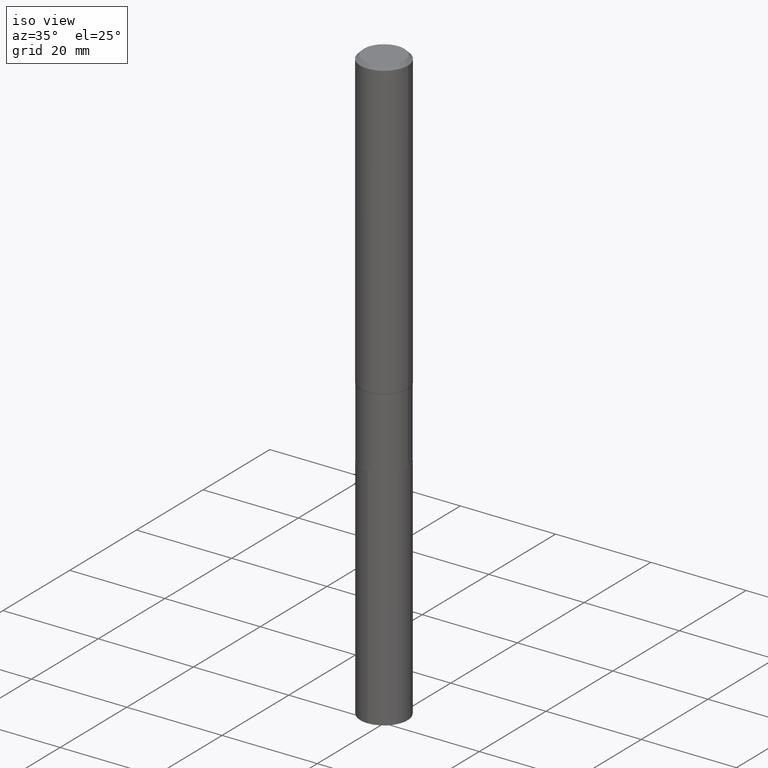
[diagram: clean part render]
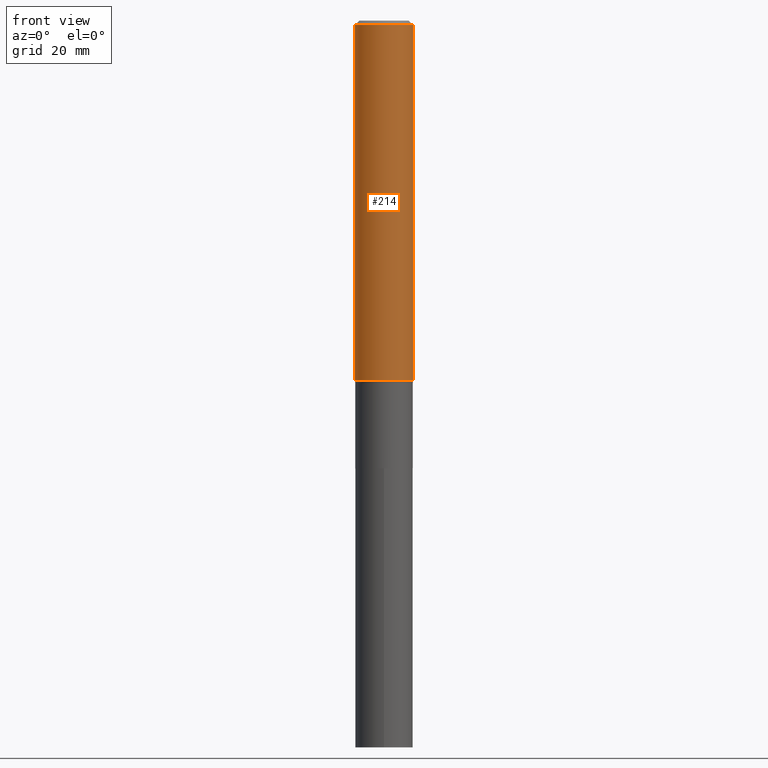
[diagram: tour spotlight — one face highlighted and labeled with its STEP entity id]
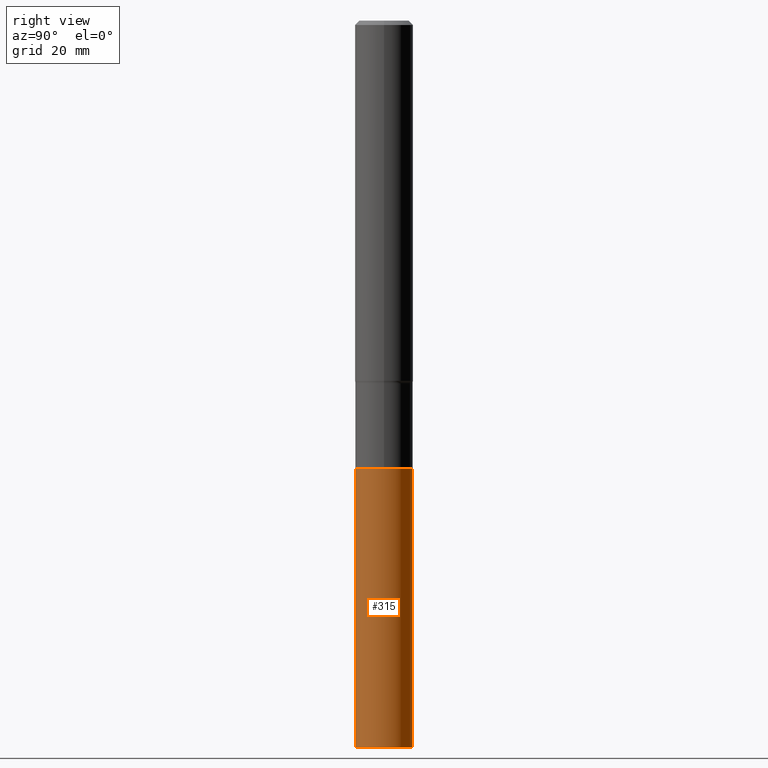
[diagram: tour spotlight — one face highlighted and labeled with its STEP entity id]
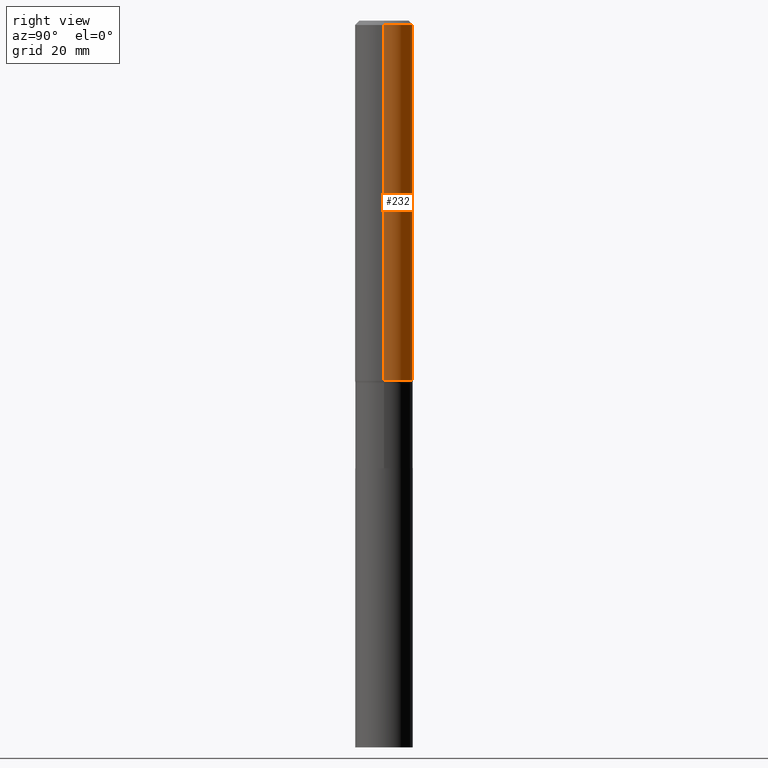
[diagram: tour spotlight — one face highlighted and labeled with its STEP entity id]
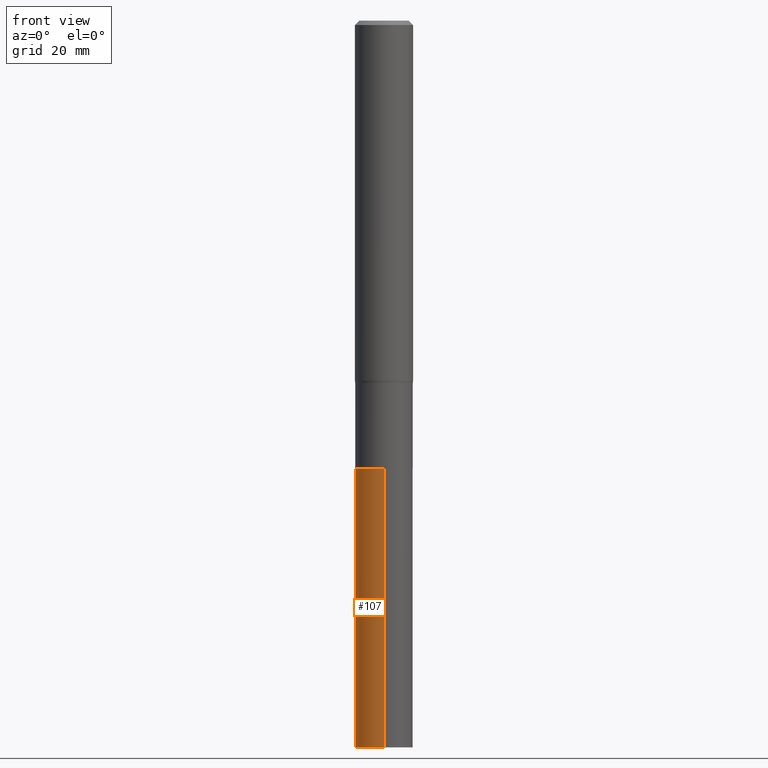
[diagram: tour spotlight — one face highlighted and labeled with its STEP entity id]
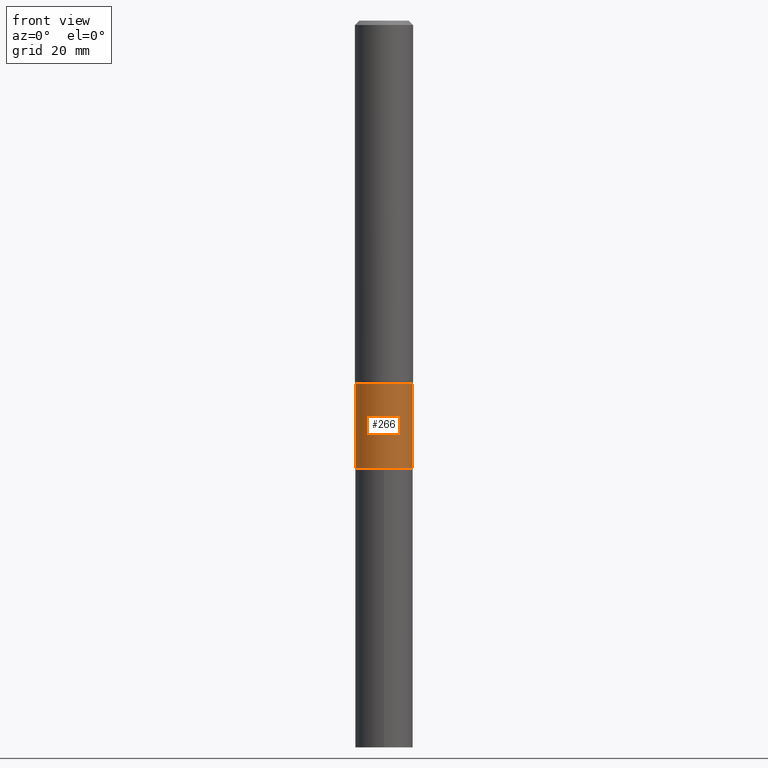
[diagram: tour spotlight — one face highlighted and labeled with its STEP entity id]
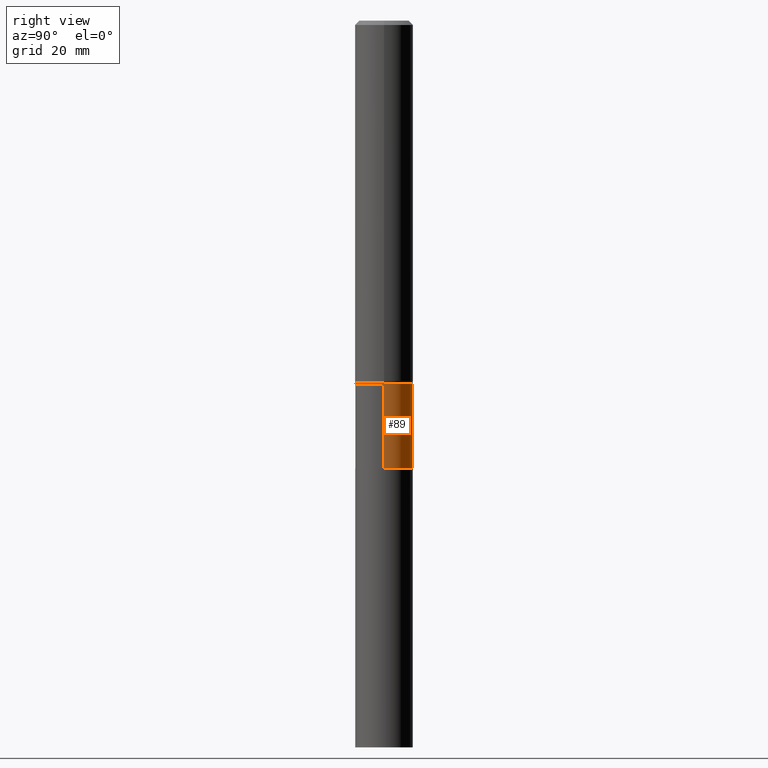
[diagram: tour spotlight — one face highlighted and labeled with its STEP entity id]
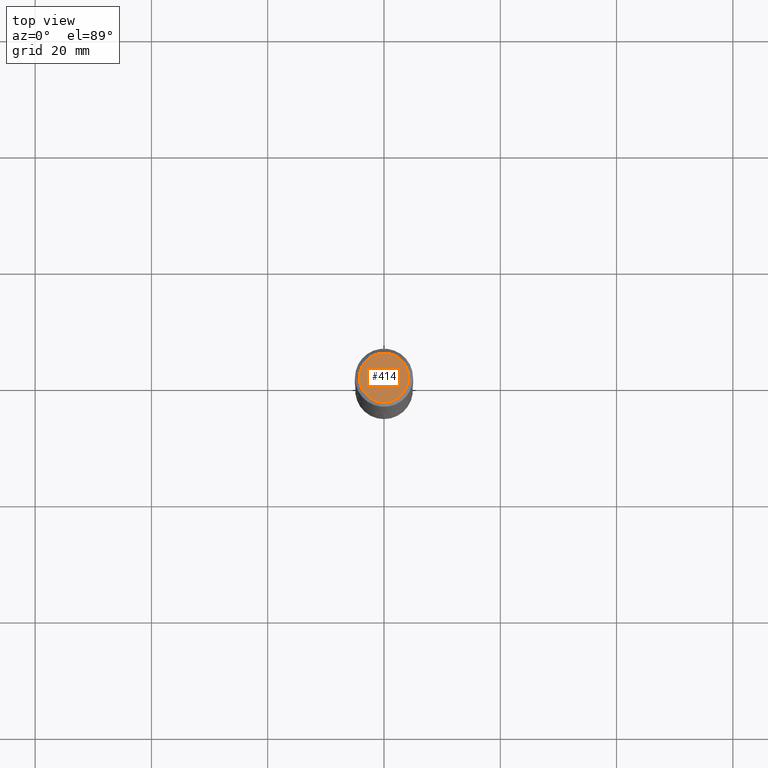
[diagram: tour spotlight — one face highlighted and labeled with its STEP entity id]
A machine part: a face-by-face anatomy tour. The part has 16 B-rep faces; the first image is the clean iso view, then the 7 largest visible faces are spotlighted one at a time (largest first), each with its STEP entity span.

Face 1 — front view, entity #214. In plain terms, the highlighted cylindrical surface (edge-blend (fillet) strip) has radius 5 mm, axis along (-0, 0, 1).
Definition (entity closure, byte-faithful):
#32 = EDGE_CURVE ( 'NONE', #34, #115, #176, .T. ) ;
#34 = VERTEX_POINT ( 'NONE', #38 ) ;
#37 = VECTOR ( 'NONE', #394, 39.37007874015748143 ) ;
#38 = CARTESIAN_POINT ( 'NONE',  ( 0.1968500000000003303, -9.891172664826294866E-15, -2.439244445323486055 ) ) ;
#40 = CARTESIAN_POINT ( 'NONE',  ( -0.1968500000000001915, 1.398703375343758577E-15, -9.682923725166790684E-30 ) ) ;
#44 = DIRECTION ( 'NONE',  ( -2.445468806185136597E-29, 3.491481338843145583E-15, 1.000000000000000000 ) ) ;
#51 = CARTESIAN_POINT ( 'NONE',  ( -0.1968500000000003303, -7.117873086379991526E-15, -2.439244445323486055 ) ) ;
#58 = AXIS2_PLACEMENT_3D ( 'NONE', #327, #119, #293 ) ;
#69 = VECTOR ( 'NONE', #439, 39.37007874015748143 ) ;
#74 = EDGE_CURVE ( 'NONE', #351, #34, #285, .T. ) ;
#88 = DIRECTION ( 'NONE',  ( 1.000000000000000000, -6.982962677686266711E-15, 4.876176775795935793E-29 ) ) ;
#115 = VERTEX_POINT ( 'NONE', #396 ) ;
#119 = DIRECTION ( 'NONE',  ( -2.445468806185136597E-29, 3.491481338843145583E-15, 1.000000000000000000 ) ) ;
#161 = CYLINDRICAL_SURFACE ( 'NONE', #189, 0.1968500000000001915 ) ;
#176 = LINE ( 'NONE', #249, #37 ) ;
#189 = AXIS2_PLACEMENT_3D ( 'NONE', #258, #295, #88 ) ;
#194 = EDGE_CURVE ( 'NONE', #351, #236, #318, .T. ) ;
#197 = DIRECTION ( 'NONE',  ( 1.000000000000000000, -6.982962677686265922E-15, 0.000000000000000000 ) ) ;
#210 = EDGE_LOOP ( 'NONE', ( #230, #415, #443, #323 ) ) ;
#214 = ADVANCED_FACE ( 'NONE', ( #331 ), #161, .T. ) ;
#230 = ORIENTED_EDGE ( 'NONE', *, *, #194, .F. ) ;
#236 = VERTEX_POINT ( 'NONE', #413 ) ;
#249 = CARTESIAN_POINT ( 'NONE',  ( 0.1968500000000001915, -1.374596203102542989E-15, 9.598753983154309266E-30 ) ) ;
#258 = CARTESIAN_POINT ( 'NONE',  ( 0.000000000000000000, 0.000000000000000000, 0.000000000000000000 ) ) ;
#259 = EDGE_CURVE ( 'NONE', #236, #115, #395, .T. ) ;
#285 = CIRCLE ( 'NONE', #58, 0.1968500000000003580 ) ;
#293 = DIRECTION ( 'NONE',  ( 1.000000000000000000, -6.982962677686265922E-15, 0.000000000000000000 ) ) ;
#295 = DIRECTION ( 'NONE',  ( -2.445468806185136597E-29, 3.491481338843145583E-15, 1.000000000000000000 ) ) ;
#318 = LINE ( 'NONE', #40, #69 ) ;
#323 = ORIENTED_EDGE ( 'NONE', *, *, #259, .F. ) ;
#327 = CARTESIAN_POINT ( 'NONE',  ( 5.965096201698950370E-29, -8.516576461723751680E-15, -2.439244445323486055 ) ) ;
#331 = FACE_OUTER_BOUND ( 'NONE', #210, .T. ) ;
#351 = VERTEX_POINT ( 'NONE', #51 ) ;
#366 = CARTESIAN_POINT ( 'NONE',  ( 7.220858017463210361E-31, -1.030947152326916856E-16, -0.02952750000000019942 ) ) ;
#380 = AXIS2_PLACEMENT_3D ( 'NONE', #366, #44, #197 ) ;
#394 = DIRECTION ( 'NONE',  ( -2.445468806185136877E-29, 3.491481338843145188E-15, 1.000000000000000000 ) ) ;
#395 = CIRCLE ( 'NONE', #380, 0.1968500000000000250 ) ;
#396 = CARTESIAN_POINT ( 'NONE',  ( 0.1968500000000000250, -1.477690918335233294E-15, -0.02952750000000019942 ) ) ;
#413 = CARTESIAN_POINT ( 'NONE',  ( -0.1968500000000000250, -2.911132213134461529E-15, -0.02952750000000019942 ) ) ;
#415 = ORIENTED_EDGE ( 'NONE', *, *, #74, .T. ) ;
#439 = DIRECTION ( 'NONE',  ( -2.445468806185136877E-29, 3.491481338843145188E-15, 1.000000000000000000 ) ) ;
#443 = ORIENTED_EDGE ( 'NONE', *, *, #32, .T. ) ;

Face 2 — right view, entity #315. In plain terms, the highlighted cylindrical surface (edge-blend (fillet) strip) has radius 4.9505 mm, axis along (-0, 0, 1).
Definition (entity closure, byte-faithful):
#3 = AXIS2_PLACEMENT_3D ( 'NONE', #427, #332, #94 ) ;
#4 = AXIS2_PLACEMENT_3D ( 'NONE', #388, #106, #422 ) ;
#19 = VECTOR ( 'NONE', #185, 39.37007874015748143 ) ;
#46 = EDGE_CURVE ( 'NONE', #416, #270, #362, .T. ) ;
#68 = EDGE_CURVE ( 'NONE', #211, #416, #255, .T. ) ;
#82 = EDGE_CURVE ( 'NONE', #421, #270, #434, .T. ) ;
#94 = DIRECTION ( 'NONE',  ( -6.982962677686266711E-15, -1.000000000000000000, 2.803332984776052637E-15 ) ) ;
#97 = VECTOR ( 'NONE', #257, 39.37007874015748143 ) ;
#106 = DIRECTION ( 'NONE',  ( -2.445466211599433691E-29, 3.491485054437546873E-15, 1.000000000000000000 ) ) ;
#120 = AXIS2_PLACEMENT_3D ( 'NONE', #124, #256, #401 ) ;
#124 = CARTESIAN_POINT ( 'NONE',  ( 7.412949592189004141E-29, -1.058372738243522642E-14, -3.031299999999999883 ) ) ;
#132 = CARTESIAN_POINT ( 'NONE',  ( -1.360979425880932790E-15, -0.1949000000000171706, -4.921299999999999564 ) ) ;
#141 = ORIENTED_EDGE ( 'NONE', *, *, #68, .F. ) ;
#160 = CARTESIAN_POINT ( 'NONE',  ( 1.384847791996555886E-15, 0.1948999999999894428, -3.031300000000000328 ) ) ;
#185 = DIRECTION ( 'NONE',  ( -2.445466211599433971E-29, 3.491485054437547267E-15, 1.000000000000000000 ) ) ;
#191 = FACE_OUTER_BOUND ( 'NONE', #201, .T. ) ;
#201 = EDGE_LOOP ( 'NONE', ( #453, #372, #458, #141 ) ) ;
#211 = VERTEX_POINT ( 'NONE', #132 ) ;
#255 = LINE ( 'NONE', #330, #19 ) ;
#256 = DIRECTION ( 'NONE',  ( -2.445466211599433691E-29, 3.491485054437546873E-15, 1.000000000000000000 ) ) ;
#257 = DIRECTION ( 'NONE',  ( -2.445466211599433971E-29, 3.491485054437547267E-15, 1.000000000000000000 ) ) ;
#270 = VERTEX_POINT ( 'NONE', #160 ) ;
#291 = CARTESIAN_POINT ( 'NONE',  ( 1.384847791996509146E-15, 0.1948999999999893873, -3.031300000000000328 ) ) ;
#315 = ADVANCED_FACE ( 'NONE', ( #191 ), #361, .T. ) ;
#316 = CARTESIAN_POINT ( 'NONE',  ( 1.384847791996532221E-15, 0.1948999999999828092, -4.921300000000002228 ) ) ;
#330 = CARTESIAN_POINT ( 'NONE',  ( -1.360979425880978939E-15, -0.1949000000000105648, -3.031299999999999439 ) ) ;
#332 = DIRECTION ( 'NONE',  ( -2.445466211599433691E-29, 3.491485054437546873E-15, 1.000000000000000000 ) ) ;
#361 = CYLINDRICAL_SURFACE ( 'NONE', #120, 0.1948999999999999899 ) ;
#362 = CIRCLE ( 'NONE', #3, 0.1948999999999999899 ) ;
#372 = ORIENTED_EDGE ( 'NONE', *, *, #82, .T. ) ;
#377 = CARTESIAN_POINT ( 'NONE',  ( -1.360979425880978939E-15, -0.1949000000000105648, -3.031299999999999439 ) ) ;
#388 = CARTESIAN_POINT ( 'NONE',  ( 1.203488073211193522E-28, -1.718263413532219501E-14, -4.921300000000000452 ) ) ;
#401 = DIRECTION ( 'NONE',  ( -6.982962677686266711E-15, -1.000000000000000000, 2.803332984776052637E-15 ) ) ;
#416 = VERTEX_POINT ( 'NONE', #377 ) ;
#421 = VERTEX_POINT ( 'NONE', #316 ) ;
#422 = DIRECTION ( 'NONE',  ( -6.982962677686266711E-15, -1.000000000000000000, 5.606665969552105274E-15 ) ) ;
#427 = CARTESIAN_POINT ( 'NONE',  ( 7.412949592189004141E-29, -1.058372738243522642E-14, -3.031299999999999883 ) ) ;
#434 = LINE ( 'NONE', #291, #97 ) ;
#440 = EDGE_CURVE ( 'NONE', #211, #421, #447, .T. ) ;
#447 = CIRCLE ( 'NONE', #4, 0.1948999999999999899 ) ;
#453 = ORIENTED_EDGE ( 'NONE', *, *, #440, .T. ) ;
#458 = ORIENTED_EDGE ( 'NONE', *, *, #46, .F. ) ;

Face 3 — right view, entity #232. In plain terms, the highlighted cylindrical surface (edge-blend (fillet) strip) has radius 5 mm, axis along (-0, 0, 1).
Definition (entity closure, byte-faithful):
#1 = DIRECTION ( 'NONE',  ( -2.445468806185136597E-29, 3.491481338843145583E-15, 1.000000000000000000 ) ) ;
#15 = ORIENTED_EDGE ( 'NONE', *, *, #32, .F. ) ;
#21 = ORIENTED_EDGE ( 'NONE', *, *, #409, .F. ) ;
#22 = CARTESIAN_POINT ( 'NONE',  ( 0.000000000000000000, 0.000000000000000000, 0.000000000000000000 ) ) ;
#32 = EDGE_CURVE ( 'NONE', #34, #115, #176, .T. ) ;
#34 = VERTEX_POINT ( 'NONE', #38 ) ;
#37 = VECTOR ( 'NONE', #394, 39.37007874015748143 ) ;
#38 = CARTESIAN_POINT ( 'NONE',  ( 0.1968500000000003303, -9.891172664826294866E-15, -2.439244445323486055 ) ) ;
#39 = CARTESIAN_POINT ( 'NONE',  ( 5.965096201698950370E-29, -8.516576461723751680E-15, -2.439244445323486055 ) ) ;
#40 = CARTESIAN_POINT ( 'NONE',  ( -0.1968500000000001915, 1.398703375343758577E-15, -9.682923725166790684E-30 ) ) ;
#51 = CARTESIAN_POINT ( 'NONE',  ( -0.1968500000000003303, -7.117873086379991526E-15, -2.439244445323486055 ) ) ;
#56 = ORIENTED_EDGE ( 'NONE', *, *, #112, .T. ) ;
#69 = VECTOR ( 'NONE', #439, 39.37007874015748143 ) ;
#77 = AXIS2_PLACEMENT_3D ( 'NONE', #173, #175, #244 ) ;
#112 = EDGE_CURVE ( 'NONE', #34, #351, #245, .T. ) ;
#115 = VERTEX_POINT ( 'NONE', #396 ) ;
#131 = ORIENTED_EDGE ( 'NONE', *, *, #194, .T. ) ;
#140 = DIRECTION ( 'NONE',  ( 1.000000000000000000, -6.982962677686266711E-15, 4.876176775795935793E-29 ) ) ;
#173 = CARTESIAN_POINT ( 'NONE',  ( 7.220858017463210361E-31, -1.030947152326916856E-16, -0.02952750000000019942 ) ) ;
#175 = DIRECTION ( 'NONE',  ( -2.445468806185136597E-29, 3.491481338843145583E-15, 1.000000000000000000 ) ) ;
#176 = LINE ( 'NONE', #249, #37 ) ;
#194 = EDGE_CURVE ( 'NONE', #351, #236, #318, .T. ) ;
#205 = FACE_OUTER_BOUND ( 'NONE', #382, .T. ) ;
#208 = AXIS2_PLACEMENT_3D ( 'NONE', #39, #1, #428 ) ;
#209 = CIRCLE ( 'NONE', #77, 0.1968500000000000250 ) ;
#232 = ADVANCED_FACE ( 'NONE', ( #205 ), #346, .T. ) ;
#236 = VERTEX_POINT ( 'NONE', #413 ) ;
#244 = DIRECTION ( 'NONE',  ( 1.000000000000000000, -6.982962677686265922E-15, 0.000000000000000000 ) ) ;
#245 = CIRCLE ( 'NONE', #208, 0.1968500000000003580 ) ;
#249 = CARTESIAN_POINT ( 'NONE',  ( 0.1968500000000001915, -1.374596203102542989E-15, 9.598753983154309266E-30 ) ) ;
#318 = LINE ( 'NONE', #40, #69 ) ;
#346 = CYLINDRICAL_SURFACE ( 'NONE', #358, 0.1968500000000001915 ) ;
#351 = VERTEX_POINT ( 'NONE', #51 ) ;
#358 = AXIS2_PLACEMENT_3D ( 'NONE', #22, #450, #140 ) ;
#382 = EDGE_LOOP ( 'NONE', ( #56, #131, #21, #15 ) ) ;
#394 = DIRECTION ( 'NONE',  ( -2.445468806185136877E-29, 3.491481338843145188E-15, 1.000000000000000000 ) ) ;
#396 = CARTESIAN_POINT ( 'NONE',  ( 0.1968500000000000250, -1.477690918335233294E-15, -0.02952750000000019942 ) ) ;
#409 = EDGE_CURVE ( 'NONE', #115, #236, #209, .T. ) ;
#413 = CARTESIAN_POINT ( 'NONE',  ( -0.1968500000000000250, -2.911132213134461529E-15, -0.02952750000000019942 ) ) ;
#428 = DIRECTION ( 'NONE',  ( 1.000000000000000000, -6.982962677686265922E-15, 0.000000000000000000 ) ) ;
#439 = DIRECTION ( 'NONE',  ( -2.445468806185136877E-29, 3.491481338843145188E-15, 1.000000000000000000 ) ) ;
#450 = DIRECTION ( 'NONE',  ( -2.445468806185136597E-29, 3.491481338843145583E-15, 1.000000000000000000 ) ) ;

Face 4 — front view, entity #107. In plain terms, the highlighted cylindrical surface (edge-blend (fillet) strip) has radius 4.9505 mm, axis along (-0, 0, 1).
Definition (entity closure, byte-faithful):
#13 = EDGE_CURVE ( 'NONE', #270, #416, #368, .T. ) ;
#19 = VECTOR ( 'NONE', #185, 39.37007874015748143 ) ;
#29 = EDGE_LOOP ( 'NONE', ( #411, #135, #170, #184 ) ) ;
#68 = EDGE_CURVE ( 'NONE', #211, #416, #255, .T. ) ;
#82 = EDGE_CURVE ( 'NONE', #421, #270, #434, .T. ) ;
#97 = VECTOR ( 'NONE', #257, 39.37007874015748143 ) ;
#107 = ADVANCED_FACE ( 'NONE', ( #324 ), #223, .T. ) ;
#117 = DIRECTION ( 'NONE',  ( -6.982962677686266711E-15, -1.000000000000000000, 2.803332984776052637E-15 ) ) ;
#132 = CARTESIAN_POINT ( 'NONE',  ( -1.360979425880932790E-15, -0.1949000000000171706, -4.921299999999999564 ) ) ;
#135 = ORIENTED_EDGE ( 'NONE', *, *, #137, .T. ) ;
#137 = EDGE_CURVE ( 'NONE', #421, #211, #342, .T. ) ;
#160 = CARTESIAN_POINT ( 'NONE',  ( 1.384847791996555886E-15, 0.1948999999999894428, -3.031300000000000328 ) ) ;
#170 = ORIENTED_EDGE ( 'NONE', *, *, #68, .T. ) ;
#184 = ORIENTED_EDGE ( 'NONE', *, *, #13, .F. ) ;
#185 = DIRECTION ( 'NONE',  ( -2.445466211599433971E-29, 3.491485054437547267E-15, 1.000000000000000000 ) ) ;
#199 = DIRECTION ( 'NONE',  ( -2.445466211599433691E-29, 3.491485054437546873E-15, 1.000000000000000000 ) ) ;
#211 = VERTEX_POINT ( 'NONE', #132 ) ;
#216 = AXIS2_PLACEMENT_3D ( 'NONE', #284, #424, #117 ) ;
#223 = CYLINDRICAL_SURFACE ( 'NONE', #467, 0.1948999999999999899 ) ;
#255 = LINE ( 'NONE', #330, #19 ) ;
#257 = DIRECTION ( 'NONE',  ( -2.445466211599433971E-29, 3.491485054437547267E-15, 1.000000000000000000 ) ) ;
#270 = VERTEX_POINT ( 'NONE', #160 ) ;
#284 = CARTESIAN_POINT ( 'NONE',  ( 7.412949592189004141E-29, -1.058372738243522642E-14, -3.031299999999999883 ) ) ;
#291 = CARTESIAN_POINT ( 'NONE',  ( 1.384847791996509146E-15, 0.1948999999999893873, -3.031300000000000328 ) ) ;
#316 = CARTESIAN_POINT ( 'NONE',  ( 1.384847791996532221E-15, 0.1948999999999828092, -4.921300000000002228 ) ) ;
#320 = DIRECTION ( 'NONE',  ( -2.445466211599433691E-29, 3.491485054437546873E-15, 1.000000000000000000 ) ) ;
#324 = FACE_OUTER_BOUND ( 'NONE', #29, .T. ) ;
#330 = CARTESIAN_POINT ( 'NONE',  ( -1.360979425880978939E-15, -0.1949000000000105648, -3.031299999999999439 ) ) ;
#335 = CARTESIAN_POINT ( 'NONE',  ( 1.203488073211193522E-28, -1.718263413532219501E-14, -4.921300000000000452 ) ) ;
#342 = CIRCLE ( 'NONE', #429, 0.1948999999999999899 ) ;
#364 = CARTESIAN_POINT ( 'NONE',  ( 7.412949592189004141E-29, -1.058372738243522642E-14, -3.031299999999999883 ) ) ;
#368 = CIRCLE ( 'NONE', #216, 0.1948999999999999899 ) ;
#377 = CARTESIAN_POINT ( 'NONE',  ( -1.360979425880978939E-15, -0.1949000000000105648, -3.031299999999999439 ) ) ;
#400 = DIRECTION ( 'NONE',  ( -6.982962677686266711E-15, -1.000000000000000000, 5.606665969552105274E-15 ) ) ;
#411 = ORIENTED_EDGE ( 'NONE', *, *, #82, .F. ) ;
#416 = VERTEX_POINT ( 'NONE', #377 ) ;
#421 = VERTEX_POINT ( 'NONE', #316 ) ;
#424 = DIRECTION ( 'NONE',  ( -2.445466211599433691E-29, 3.491485054437546873E-15, 1.000000000000000000 ) ) ;
#429 = AXIS2_PLACEMENT_3D ( 'NONE', #335, #199, #400 ) ;
#434 = LINE ( 'NONE', #291, #97 ) ;
#467 = AXIS2_PLACEMENT_3D ( 'NONE', #364, #320, #468 ) ;
#468 = DIRECTION ( 'NONE',  ( -6.982962677686266711E-15, -1.000000000000000000, 2.803332984776052637E-15 ) ) ;

Face 5 — front view, entity #266. In plain terms, the highlighted cylindrical surface (edge-blend (fillet) strip) has radius 4.9505 mm, axis along (-0, 0, 1).
Definition (entity closure, byte-faithful):
#12 = DIRECTION ( 'NONE',  ( -2.445468806185136597E-29, 3.491481338843145583E-15, 1.000000000000000000 ) ) ;
#23 = CARTESIAN_POINT ( 'NONE',  ( 6.008027763035643175E-29, -8.577871353269839146E-15, -2.456799999999999873 ) ) ;
#24 = DIRECTION ( 'NONE',  ( -2.445468806185136597E-29, 3.491481338843145583E-15, 1.000000000000000000 ) ) ;
#26 = CARTESIAN_POINT ( 'NONE',  ( 0.1948999999999999344, -1.360979425881052894E-15, 9.503668536026277414E-30 ) ) ;
#28 = AXIS2_PLACEMENT_3D ( 'NONE', #66, #24, #314 ) ;
#53 = CARTESIAN_POINT ( 'NONE',  ( -0.1948999999999999344, 1.384847791996434796E-15, -9.587004490906808522E-30 ) ) ;
#55 = VERTEX_POINT ( 'NONE', #301 ) ;
#63 = LINE ( 'NONE', #53, #329 ) ;
#66 = CARTESIAN_POINT ( 'NONE',  ( 7.411726857785911339E-29, -1.058198164176580413E-14, -3.030799999999999716 ) ) ;
#79 = CYLINDRICAL_SURFACE ( 'NONE', #152, 0.1948999999999999344 ) ;
#92 = CARTESIAN_POINT ( 'NONE',  ( 0.000000000000000000, 0.000000000000000000, 0.000000000000000000 ) ) ;
#109 = LINE ( 'NONE', #26, #438 ) ;
#125 = CIRCLE ( 'NONE', #28, 0.1948999999999999899 ) ;
#130 = CARTESIAN_POINT ( 'NONE',  ( 0.1948999999999999067, -9.938850779150892237E-15, -2.456799999999999873 ) ) ;
#138 = EDGE_LOOP ( 'NONE', ( #357, #410, #386, #348 ) ) ;
#152 = AXIS2_PLACEMENT_3D ( 'NONE', #92, #12, #292 ) ;
#162 = DIRECTION ( 'NONE',  ( 1.000000000000000000, -6.982962677686267499E-15, 0.000000000000000000 ) ) ;
#181 = CARTESIAN_POINT ( 'NONE',  ( -0.1948999999999999899, -8.195078705521387433E-15, -3.030799999999999716 ) ) ;
#186 = EDGE_CURVE ( 'NONE', #192, #55, #125, .T. ) ;
#192 = VERTEX_POINT ( 'NONE', #181 ) ;
#240 = CIRCLE ( 'NONE', #369, 0.1948999999999999067 ) ;
#241 = VERTEX_POINT ( 'NONE', #349 ) ;
#266 = ADVANCED_FACE ( 'NONE', ( #436 ), #79, .T. ) ;
#274 = DIRECTION ( 'NONE',  ( -2.445468806185136877E-29, 3.491481338843145188E-15, 1.000000000000000000 ) ) ;
#292 = DIRECTION ( 'NONE',  ( 1.000000000000000000, -6.982962677686266711E-15, 4.876176775795936914E-29 ) ) ;
#301 = CARTESIAN_POINT ( 'NONE',  ( 0.1948999999999999899, -1.194296106764685722E-14, -3.030799999999999716 ) ) ;
#307 = VERTEX_POINT ( 'NONE', #130 ) ;
#314 = DIRECTION ( 'NONE',  ( 1.000000000000000000, -6.982962677686264344E-15, 0.000000000000000000 ) ) ;
#329 = VECTOR ( 'NONE', #274, 39.37007874015748143 ) ;
#348 = ORIENTED_EDGE ( 'NONE', *, *, #451, .F. ) ;
#349 = CARTESIAN_POINT ( 'NONE',  ( -0.1948999999999999067, -8.195078705521387433E-15, -2.456799999999999873 ) ) ;
#357 = ORIENTED_EDGE ( 'NONE', *, *, #465, .F. ) ;
#369 = AXIS2_PLACEMENT_3D ( 'NONE', #23, #426, #162 ) ;
#386 = ORIENTED_EDGE ( 'NONE', *, *, #398, .T. ) ;
#398 = EDGE_CURVE ( 'NONE', #55, #307, #109, .T. ) ;
#410 = ORIENTED_EDGE ( 'NONE', *, *, #186, .T. ) ;
#426 = DIRECTION ( 'NONE',  ( -2.445468806185136597E-29, 3.491481338843145583E-15, 1.000000000000000000 ) ) ;
#436 = FACE_OUTER_BOUND ( 'NONE', #138, .T. ) ;
#438 = VECTOR ( 'NONE', #466, 39.37007874015748143 ) ;
#451 = EDGE_CURVE ( 'NONE', #241, #307, #240, .T. ) ;
#465 = EDGE_CURVE ( 'NONE', #192, #241, #63, .T. ) ;
#466 = DIRECTION ( 'NONE',  ( -2.445468806185136877E-29, 3.491481338843145188E-15, 1.000000000000000000 ) ) ;

Face 6 — right view, entity #89. In plain terms, the highlighted cylindrical surface (edge-blend (fillet) strip) has radius 4.9505 mm, axis along (-0, 0, 1).
Definition (entity closure, byte-faithful):
#2 = EDGE_CURVE ( 'NONE', #307, #241, #297, .T. ) ;
#6 = DIRECTION ( 'NONE',  ( -2.445468806185136597E-29, 3.491481338843145583E-15, 1.000000000000000000 ) ) ;
#26 = CARTESIAN_POINT ( 'NONE',  ( 0.1948999999999999344, -1.360979425881052894E-15, 9.503668536026277414E-30 ) ) ;
#33 = CARTESIAN_POINT ( 'NONE',  ( 6.008027763035643175E-29, -8.577871353269839146E-15, -2.456799999999999873 ) ) ;
#41 = FACE_OUTER_BOUND ( 'NONE', #279, .T. ) ;
#53 = CARTESIAN_POINT ( 'NONE',  ( -0.1948999999999999344, 1.384847791996434796E-15, -9.587004490906808522E-30 ) ) ;
#55 = VERTEX_POINT ( 'NONE', #301 ) ;
#63 = LINE ( 'NONE', #53, #329 ) ;
#80 = DIRECTION ( 'NONE',  ( 1.000000000000000000, -6.982962677686266711E-15, 4.876176775795936914E-29 ) ) ;
#84 = CIRCLE ( 'NONE', #151, 0.1948999999999999899 ) ;
#87 = DIRECTION ( 'NONE',  ( 1.000000000000000000, -6.982962677686264344E-15, 0.000000000000000000 ) ) ;
#89 = ADVANCED_FACE ( 'NONE', ( #41 ), #187, .T. ) ;
#93 = EDGE_CURVE ( 'NONE', #55, #192, #84, .T. ) ;
#101 = ORIENTED_EDGE ( 'NONE', *, *, #2, .F. ) ;
#109 = LINE ( 'NONE', #26, #438 ) ;
#130 = CARTESIAN_POINT ( 'NONE',  ( 0.1948999999999999067, -9.938850779150892237E-15, -2.456799999999999873 ) ) ;
#145 = ORIENTED_EDGE ( 'NONE', *, *, #398, .F. ) ;
#151 = AXIS2_PLACEMENT_3D ( 'NONE', #250, #6, #87 ) ;
#155 = ORIENTED_EDGE ( 'NONE', *, *, #93, .T. ) ;
#181 = CARTESIAN_POINT ( 'NONE',  ( -0.1948999999999999899, -8.195078705521387433E-15, -3.030799999999999716 ) ) ;
#187 = CYLINDRICAL_SURFACE ( 'NONE', #454, 0.1948999999999999344 ) ;
#192 = VERTEX_POINT ( 'NONE', #181 ) ;
#213 = DIRECTION ( 'NONE',  ( -2.445468806185136597E-29, 3.491481338843145583E-15, 1.000000000000000000 ) ) ;
#239 = AXIS2_PLACEMENT_3D ( 'NONE', #33, #213, #289 ) ;
#241 = VERTEX_POINT ( 'NONE', #349 ) ;
#250 = CARTESIAN_POINT ( 'NONE',  ( 7.411726857785911339E-29, -1.058198164176580413E-14, -3.030799999999999716 ) ) ;
#274 = DIRECTION ( 'NONE',  ( -2.445468806185136877E-29, 3.491481338843145188E-15, 1.000000000000000000 ) ) ;
#279 = EDGE_LOOP ( 'NONE', ( #155, #417, #101, #145 ) ) ;
#289 = DIRECTION ( 'NONE',  ( 1.000000000000000000, -6.982962677686267499E-15, 0.000000000000000000 ) ) ;
#297 = CIRCLE ( 'NONE', #239, 0.1948999999999999067 ) ;
#301 = CARTESIAN_POINT ( 'NONE',  ( 0.1948999999999999899, -1.194296106764685722E-14, -3.030799999999999716 ) ) ;
#307 = VERTEX_POINT ( 'NONE', #130 ) ;
#329 = VECTOR ( 'NONE', #274, 39.37007874015748143 ) ;
#349 = CARTESIAN_POINT ( 'NONE',  ( -0.1948999999999999067, -8.195078705521387433E-15, -2.456799999999999873 ) ) ;
#398 = EDGE_CURVE ( 'NONE', #55, #307, #109, .T. ) ;
#402 = CARTESIAN_POINT ( 'NONE',  ( 0.000000000000000000, 0.000000000000000000, 0.000000000000000000 ) ) ;
#417 = ORIENTED_EDGE ( 'NONE', *, *, #465, .T. ) ;
#425 = DIRECTION ( 'NONE',  ( -2.445468806185136597E-29, 3.491481338843145583E-15, 1.000000000000000000 ) ) ;
#438 = VECTOR ( 'NONE', #466, 39.37007874015748143 ) ;
#454 = AXIS2_PLACEMENT_3D ( 'NONE', #402, #425, #80 ) ;
#465 = EDGE_CURVE ( 'NONE', #192, #241, #63, .T. ) ;
#466 = DIRECTION ( 'NONE',  ( -2.445468806185136877E-29, 3.491481338843145188E-15, 1.000000000000000000 ) ) ;

Face 7 — top view, entity #414. In plain terms, the highlighted planar face has unit normal (0, -0, -1).
Definition (entity closure, byte-faithful):
#36 = VERTEX_POINT ( 'NONE', #290 ) ;
#61 = DIRECTION ( 'NONE',  ( 1.000000000000000000, -6.982962677686267499E-15, 4.876294436782262290E-29 ) ) ;
#72 = CARTESIAN_POINT ( 'NONE',  ( -1.001697619218021790E-46, 1.430158722866389718E-32, 4.096137381448108366E-18 ) ) ;
#104 = ORIENTED_EDGE ( 'NONE', *, *, #247, .T. ) ;
#116 = DIRECTION ( 'NONE',  ( -1.000000000000000000, 6.982962677686265922E-15, -4.876176775795935793E-29 ) ) ;
#127 = DIRECTION ( 'NONE',  ( -2.445468806185136597E-29, 3.491481338843145583E-15, 1.000000000000000000 ) ) ;
#143 = CIRCLE ( 'NONE', #261, 0.1673224999999999851 ) ;
#149 = FACE_OUTER_BOUND ( 'NONE', #461, .T. ) ;
#200 = CARTESIAN_POINT ( 'NONE',  ( -0.1673224999999999851, 1.219954130253505263E-15, 4.096137381439757534E-18 ) ) ;
#212 = DIRECTION ( 'NONE',  ( -2.445468806185136597E-29, 3.491481338843145583E-15, 1.000000000000000000 ) ) ;
#222 = DIRECTION ( 'NONE',  ( 1.000000000000000000, -6.982962677686267499E-15, 4.876294436782262290E-29 ) ) ;
#247 = EDGE_CURVE ( 'NONE', #36, #345, #437, .T. ) ;
#254 = CARTESIAN_POINT ( 'NONE',  ( -1.001697619218021790E-46, 1.430158722866389718E-32, 4.096137381448108366E-18 ) ) ;
#261 = AXIS2_PLACEMENT_3D ( 'NONE', #72, #212, #61 ) ;
#290 = CARTESIAN_POINT ( 'NONE',  ( 0.1673224999999999851, -1.300749711163072397E-15, 4.096137381456741925E-18 ) ) ;
#308 = CARTESIAN_POINT ( 'NONE',  ( -5.008488096090108951E-47, 7.150793614331948590E-33, 2.048068690724054183E-18 ) ) ;
#339 = AXIS2_PLACEMENT_3D ( 'NONE', #254, #127, #222 ) ;
#345 = VERTEX_POINT ( 'NONE', #200 ) ;
#353 = DIRECTION ( 'NONE',  ( 2.438088387897960049E-29, -3.491481338843145188E-15, -1.000000000000000000 ) ) ;
#359 = AXIS2_PLACEMENT_3D ( 'NONE', #308, #353, #116 ) ;
#385 = PLANE ( 'NONE',  #359 ) ;
#414 = ADVANCED_FACE ( 'NONE', ( #149 ), #385, .F. ) ;
#437 = CIRCLE ( 'NONE', #339, 0.1673224999999999851 ) ;
#445 = EDGE_CURVE ( 'NONE', #345, #36, #143, .T. ) ;
#461 = EDGE_LOOP ( 'NONE', ( #464, #104 ) ) ;
#464 = ORIENTED_EDGE ( 'NONE', *, *, #445, .T. ) ;